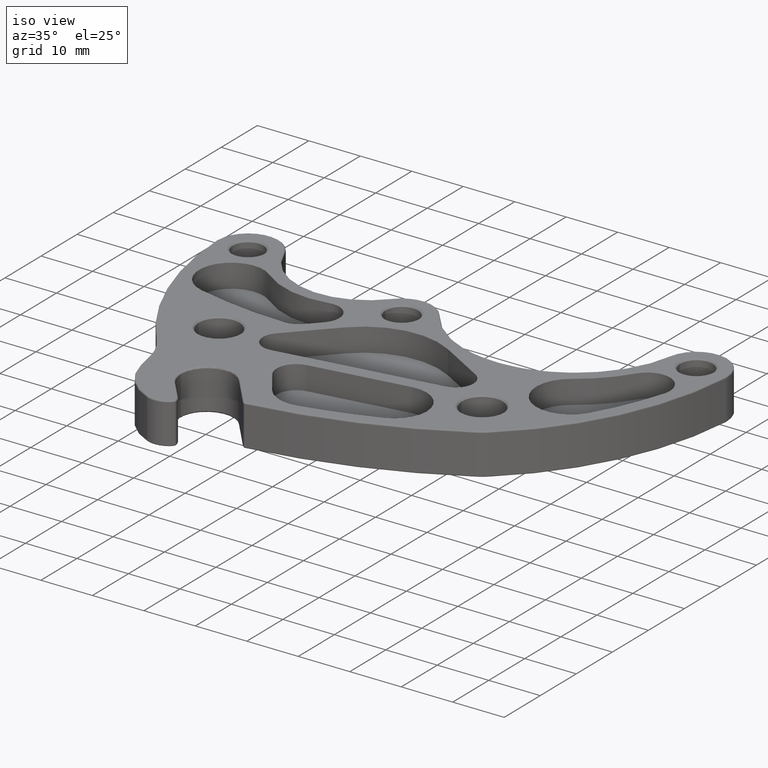
[diagram: clean part render]
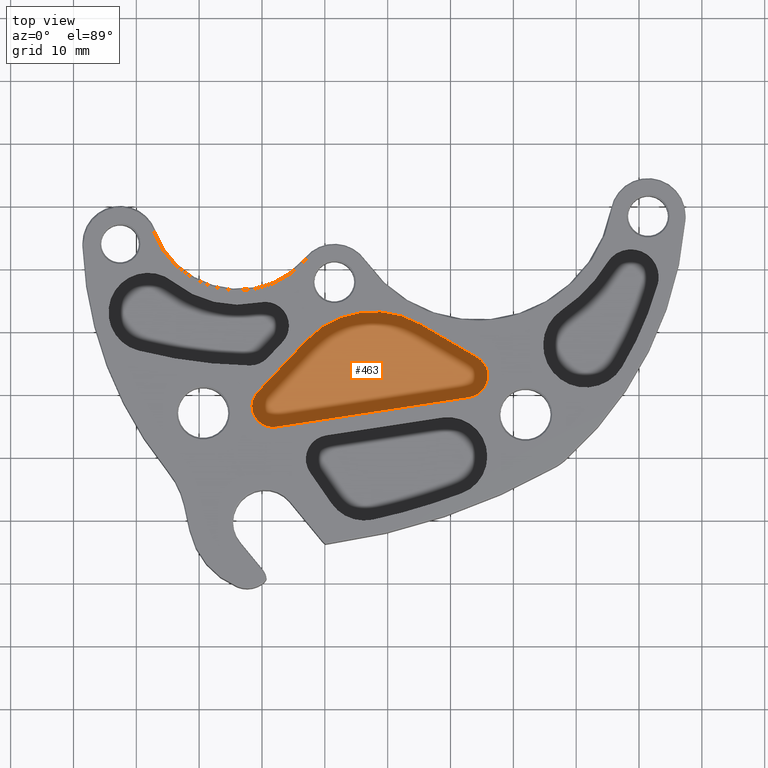
[diagram: tour spotlight — one face highlighted and labeled with its STEP entity id]
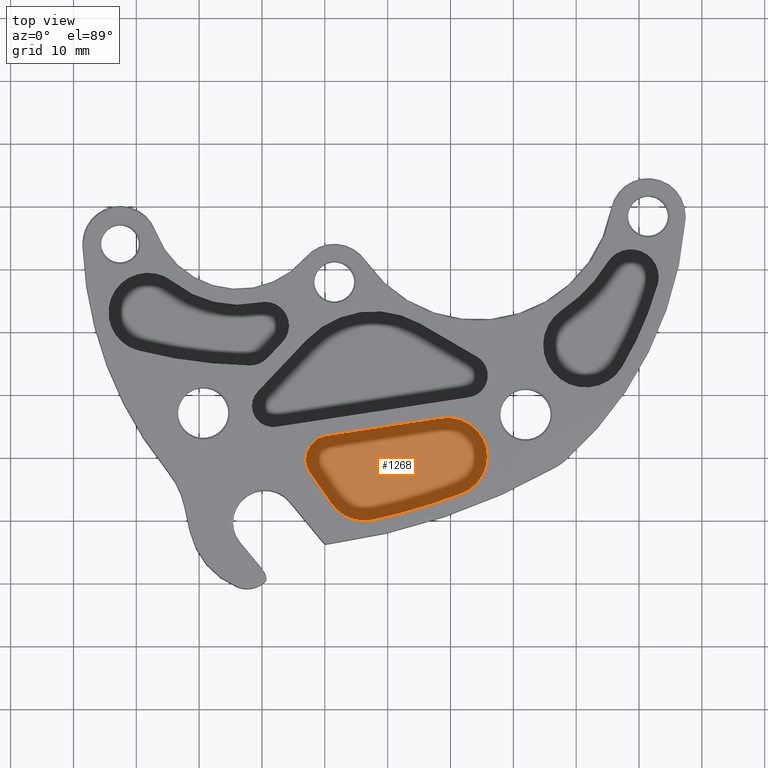
[diagram: tour spotlight — one face highlighted and labeled with its STEP entity id]
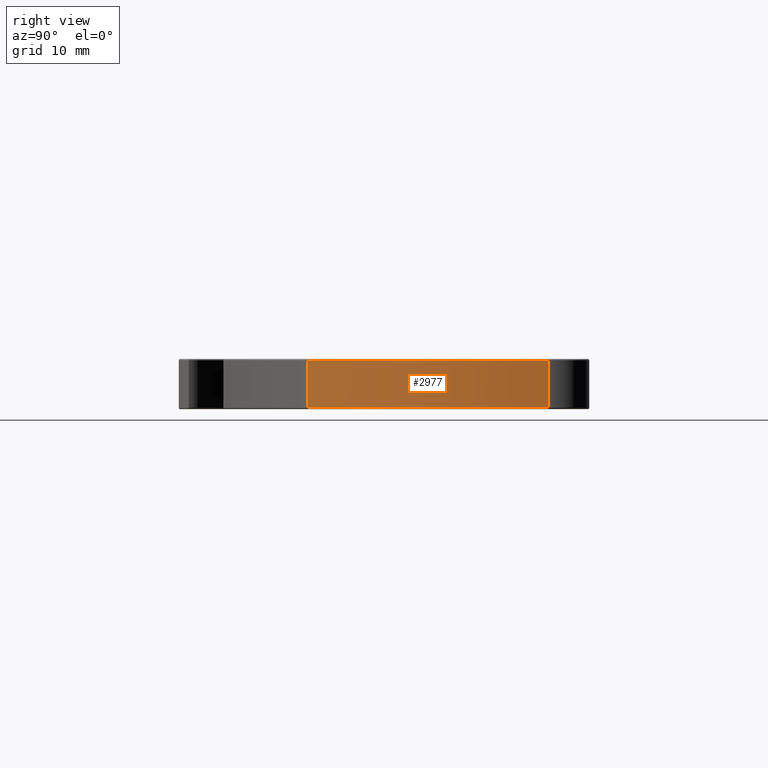
[diagram: tour spotlight — one face highlighted and labeled with its STEP entity id]
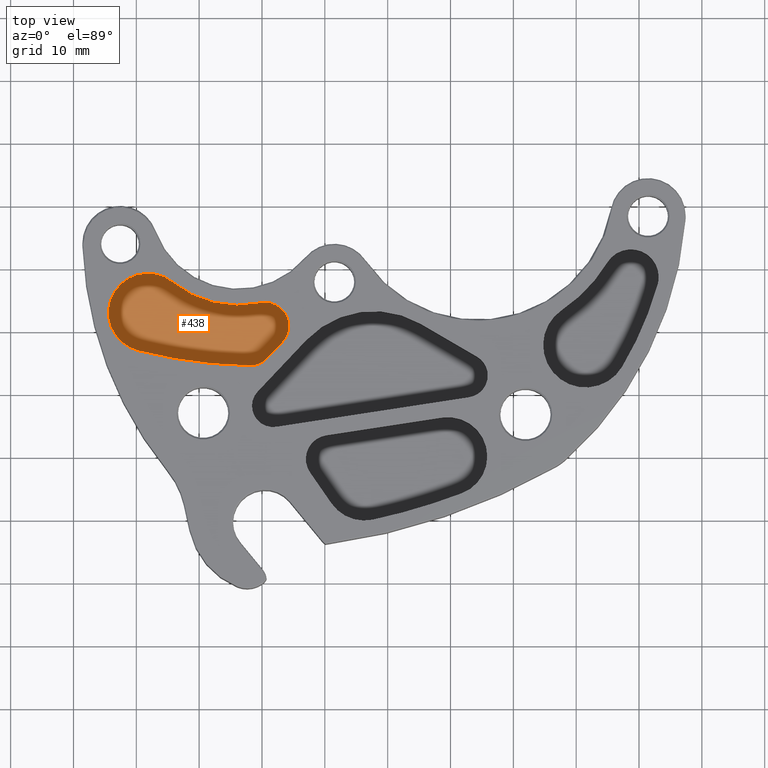
[diagram: tour spotlight — one face highlighted and labeled with its STEP entity id]
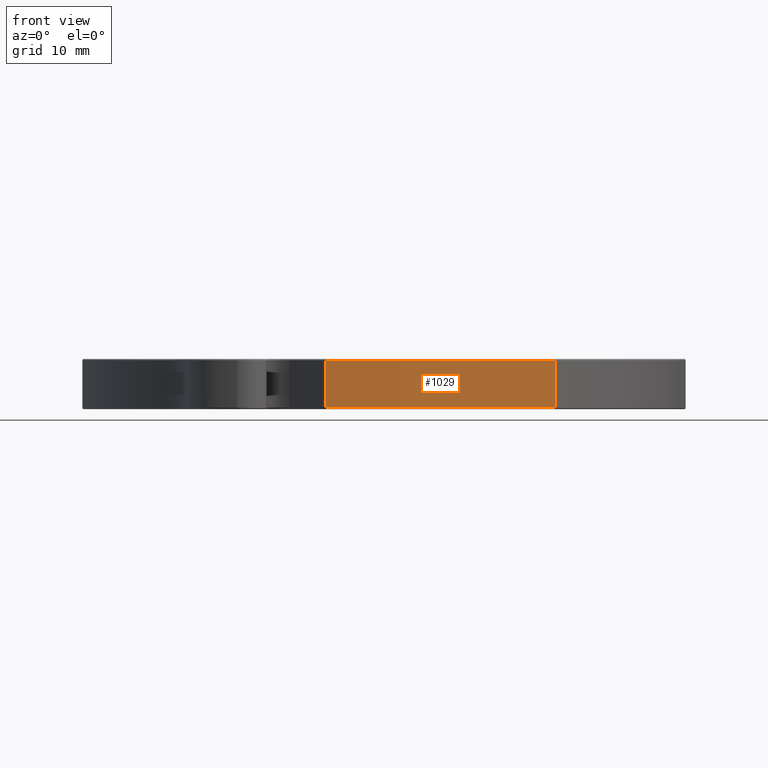
[diagram: tour spotlight — one face highlighted and labeled with its STEP entity id]
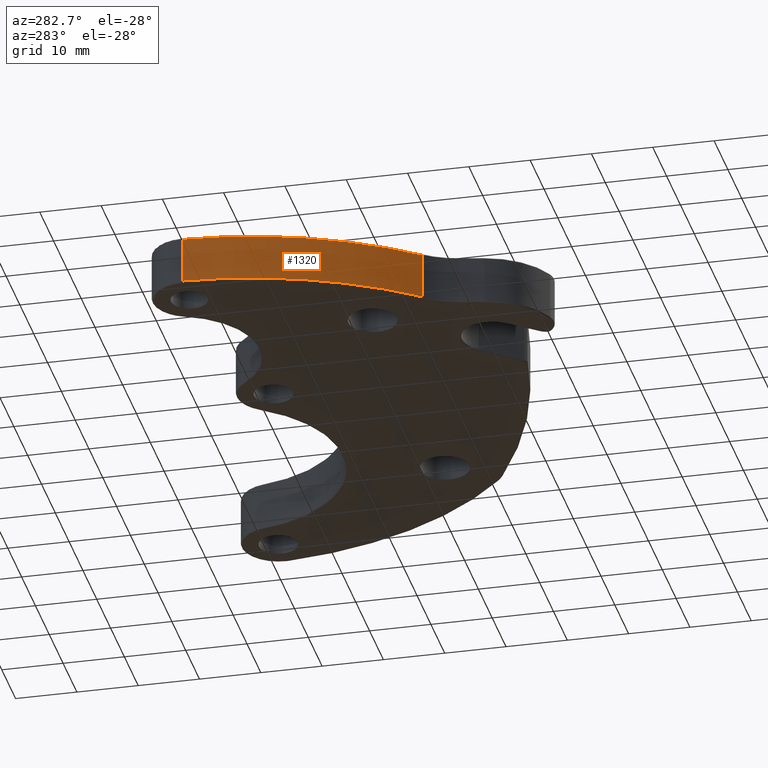
[diagram: tour spotlight — one face highlighted and labeled with its STEP entity id]
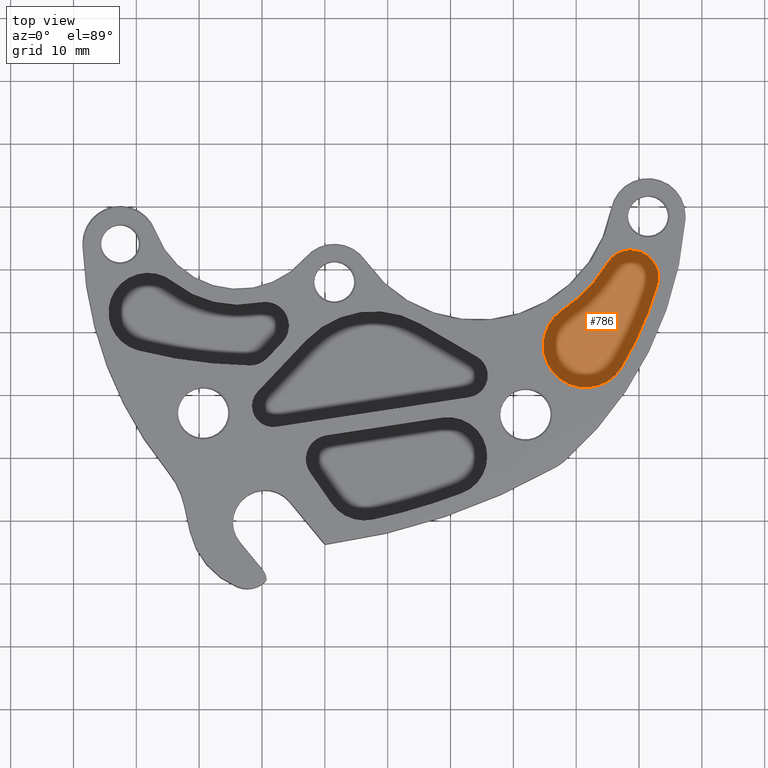
[diagram: tour spotlight — one face highlighted and labeled with its STEP entity id]
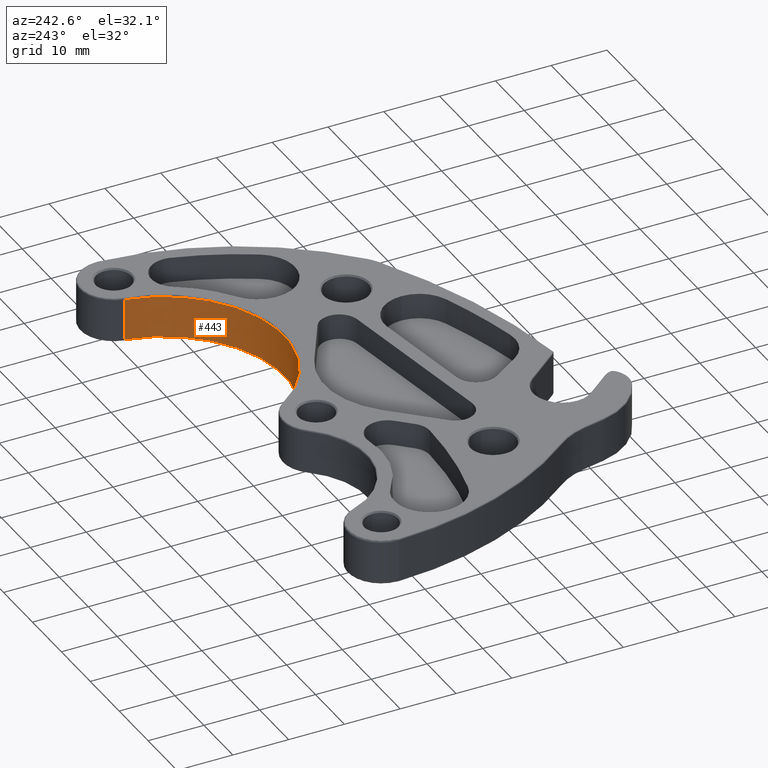
[diagram: tour spotlight — one face highlighted and labeled with its STEP entity id]
A machine part: a face-by-face anatomy tour. The part has 121 B-rep faces; the first image is the clean iso view, then the 8 largest visible faces are spotlighted one at a time (largest first), each with its STEP entity span.

Face 1 — top view, entity #463. In plain terms, the highlighted planar face has unit normal (0, 0, 1).
Definition (entity closure, byte-faithful):
#92 = ORIENTED_EDGE ( 'NONE', *, *, #1178, .T. ) ;
#105 = CIRCLE ( 'NONE', #2047, 0.1374311706390002885 ) ;
#166 = VERTEX_POINT ( 'NONE', #3463 ) ;
#179 = EDGE_LOOP ( 'NONE', ( #2503, #2310, #3189, #3592, #3028, #92, #596 ) ) ;
#463 = ADVANCED_FACE ( 'NONE', ( #1175 ), #1138, .T. ) ;
#488 = CIRCLE ( 'NONE', #1477, 0.1374311706390002885 ) ;
#549 = CARTESIAN_POINT ( 'NONE',  ( 1.880499085471999177, -5.965355483624994903, 0.1349999999999997868 ) ) ;
#596 = ORIENTED_EDGE ( 'NONE', *, *, #2193, .T. ) ;
#598 = CIRCLE ( 'NONE', #3480, 0.1322008831554022379 ) ;
#636 = EDGE_CURVE ( 'NONE', #2556, #974, #1303, .T. ) ;
#640 = VERTEX_POINT ( 'NONE', #3503 ) ;
#706 = AXIS2_PLACEMENT_3D ( 'NONE', #1419, #1346, #1646 ) ;
#731 = EDGE_CURVE ( 'NONE', #1625, #795, #2758, .T. ) ;
#795 = VERTEX_POINT ( 'NONE', #1607 ) ;
#836 = EDGE_CURVE ( 'NONE', #3085, #2556, #598, .T. ) ;
#926 = CARTESIAN_POINT ( 'NONE',  ( 2.457795016328999882, -5.787563761074995483, 0.1349999999999997868 ) ) ;
#974 = VERTEX_POINT ( 'NONE', #1140 ) ;
#1074 = DIRECTION ( 'NONE',  ( 1.000000000000000000, 0.0000000000000000000, 0.0000000000000000000 ) ) ;
#1138 = PLANE ( 'NONE',  #706 ) ;
#1140 = CARTESIAN_POINT ( 'NONE',  ( 2.478599164914152997, -5.923411153633166393, 0.1349999999999997313 ) ) ;
#1175 = FACE_OUTER_BOUND ( 'NONE', #179, .T. ) ;
#1178 = EDGE_CURVE ( 'NONE', #795, #640, #2522, .T. ) ;
#1212 = DIRECTION ( 'NONE',  ( 1.000000000000000000, 0.0000000000000000000, 0.0000000000000000000 ) ) ;
#1303 = LINE ( 'NONE', #1946, #2104 ) ;
#1323 = AXIS2_PLACEMENT_3D ( 'NONE', #549, #1711, #3373 ) ;
#1346 = DIRECTION ( 'NONE',  ( 7.534237942442868409E-31, 3.389636702121541407E-30, 1.000000000000000000 ) ) ;
#1348 = CARTESIAN_POINT ( 'NONE',  ( 1.250367637380000341, -5.977764711144997634, 0.1349999999999997591 ) ) ;
#1419 = CARTESIAN_POINT ( 'NONE',  ( 1.250367637380000341, -5.977764711144997634, 0.1349999999999997591 ) ) ;
#1477 = AXIS2_PLACEMENT_3D ( 'NONE', #926, #2839, #1212 ) ;
#1607 = CARTESIAN_POINT ( 'NONE',  ( 2.173330800213257419, -5.462765187952187240, 0.1349999999999998701 ) ) ;
#1625 = VERTEX_POINT ( 'NONE', #3056 ) ;
#1645 = CARTESIAN_POINT ( 'NONE',  ( 2.457795016328999882, -5.787563761074995483, 0.1349999999999997868 ) ) ;
#1646 = DIRECTION ( 'NONE',  ( 1.000000000000000000, 1.110223024625157280E-16, -7.534237942442871912E-31 ) ) ;
#1711 = DIRECTION ( 'NONE',  ( -9.013352139732279557E-31, 3.389636702121541407E-30, 1.000000000000000000 ) ) ;
#1851 = CARTESIAN_POINT ( 'NONE',  ( 1.154280082573003519, -5.886966829460996031, 0.1349999999999997313 ) ) ;
#1926 = DIRECTION ( 'NONE',  ( 1.000000000000000000, 0.0000000000000000000, 0.0000000000000000000 ) ) ;
#1946 = CARTESIAN_POINT ( 'NONE',  ( 1.270380031973000756, -6.108442090862000740, 0.1349999999999997868 ) ) ;
#1971 = LINE ( 'NONE', #3108, #3251 ) ;
#2047 = AXIS2_PLACEMENT_3D ( 'NONE', #1645, #3566, #1926 ) ;
#2104 = VECTOR ( 'NONE', #3054, 39.37007874015748143 ) ;
#2193 = EDGE_CURVE ( 'NONE', #640, #3085, #1971, .T. ) ;
#2310 = ORIENTED_EDGE ( 'NONE', *, *, #636, .T. ) ;
#2363 = DIRECTION ( 'NONE',  ( -0.6868175122344041261, -0.7268299009315342118, -2.483679256281781108E-30 ) ) ;
#2503 = ORIENTED_EDGE ( 'NONE', *, *, #836, .T. ) ;
#2522 = CIRCLE ( 'NONE', #1323, 0.5816763863720003647 ) ;
#2556 = VERTEX_POINT ( 'NONE', #2867 ) ;
#2758 = LINE ( 'NONE', #2787, #3150 ) ;
#2787 = CARTESIAN_POINT ( 'NONE',  ( 2.526981605814136334, -5.668818055895314956, 0.1349999999999997591 ) ) ;
#2839 = DIRECTION ( 'NONE',  ( -9.013352139732279557E-31, 3.389636702121541407E-30, 1.000000000000000000 ) ) ;
#2849 = EDGE_CURVE ( 'NONE', #166, #1625, #105, .T. ) ;
#2867 = CARTESIAN_POINT ( 'NONE',  ( 1.270380031973000756, -6.108442090862000740, 0.1349999999999997868 ) ) ;
#3028 = ORIENTED_EDGE ( 'NONE', *, *, #731, .T. ) ;
#3054 = DIRECTION ( 'NONE',  ( 0.9884758452287893959, 0.1513786755102258241, -5.700752635386220315E-32 ) ) ;
#3056 = CARTESIAN_POINT ( 'NONE',  ( 2.526981605814136334, -5.668818055895314956, 0.1349999999999997591 ) ) ;
#3085 = VERTEX_POINT ( 'NONE', #1851 ) ;
#3108 = CARTESIAN_POINT ( 'NONE',  ( 1.457719295190799791, -5.565849955011723083, 0.1349999999999997313 ) ) ;
#3150 = VECTOR ( 'NONE', #3570, 39.37007874015748854 ) ;
#3189 = ORIENTED_EDGE ( 'NONE', *, *, #3320, .T. ) ;
#3251 = VECTOR ( 'NONE', #2363, 39.37007874015748854 ) ;
#3261 = DIRECTION ( 'NONE',  ( -9.013352139732279557E-31, 3.389636702121541407E-30, 1.000000000000000000 ) ) ;
#3320 = EDGE_CURVE ( 'NONE', #974, #166, #488, .T. ) ;
#3373 = DIRECTION ( 'NONE',  ( 1.000000000000000000, 0.0000000000000000000, 0.0000000000000000000 ) ) ;
#3463 = CARTESIAN_POINT ( 'NONE',  ( 2.595226186968000448, -5.787563761074995483, 0.1349999999999997868 ) ) ;
#3480 = AXIS2_PLACEMENT_3D ( 'NONE', #1348, #3261, #1074 ) ;
#3503 = CARTESIAN_POINT ( 'NONE',  ( 1.457719295190799791, -5.565849955011723083, 0.1349999999999997313 ) ) ;
#3566 = DIRECTION ( 'NONE',  ( -9.013352139732279557E-31, 3.389636702121541407E-30, 1.000000000000000000 ) ) ;
#3570 = DIRECTION ( 'NONE',  ( -0.8640376460999206198, 0.5034272004193933725, 2.643916627654797729E-30 ) ) ;
#3592 = ORIENTED_EDGE ( 'NONE', *, *, #2849, .T. ) ;

Face 2 — top view, entity #1268. In plain terms, the highlighted planar face has unit normal (0, 0, 1).
Definition (entity closure, byte-faithful):
#75 = VECTOR ( 'NONE', #1152, 39.37007874015748854 ) ;
#86 = EDGE_CURVE ( 'NONE', #2368, #1735, #1958, .T. ) ;
#101 = EDGE_CURVE ( 'NONE', #1924, #2368, #484, .T. ) ;
#119 = DIRECTION ( 'NONE',  ( 1.000000000000000000, 0.0000000000000000000, 0.0000000000000000000 ) ) ;
#129 = VERTEX_POINT ( 'NONE', #2663 ) ;
#137 = FACE_OUTER_BOUND ( 'NONE', #1278, .T. ) ;
#140 = CARTESIAN_POINT ( 'NONE',  ( 1.605793819709998571, -6.309990268317001494, 0.1349999999999997868 ) ) ;
#290 = EDGE_CURVE ( 'NONE', #129, #334, #2979, .T. ) ;
#334 = VERTEX_POINT ( 'NONE', #2866 ) ;
#380 = DIRECTION ( 'NONE',  ( 1.000000000000000000, 0.0000000000000000000, 0.0000000000000000000 ) ) ;
#398 = DIRECTION ( 'NONE',  ( -9.013352139732279557E-31, 3.389636702121541407E-30, 1.000000000000000000 ) ) ;
#415 = AXIS2_PLACEMENT_3D ( 'NONE', #431, #616, #1679 ) ;
#431 = CARTESIAN_POINT ( 'NONE',  ( 2.345576810415005653, -6.294339333500996503, 0.1349999999999997591 ) ) ;
#465 = ORIENTED_EDGE ( 'NONE', *, *, #101, .T. ) ;
#484 = CIRCLE ( 'NONE', #2939, 0.2465167982770000155 ) ;
#504 = AXIS2_PLACEMENT_3D ( 'NONE', #904, #3331, #1794 ) ;
#517 = EDGE_CURVE ( 'NONE', #1735, #3154, #821, .T. ) ;
#582 = ORIENTED_EDGE ( 'NONE', *, *, #517, .T. ) ;
#616 = DIRECTION ( 'NONE',  ( -9.013352139732279557E-31, 3.389636702121541407E-30, 1.000000000000000000 ) ) ;
#821 = LINE ( 'NONE', #3589, #75 ) ;
#873 = PLANE ( 'NONE',  #3350 ) ;
#878 = AXIS2_PLACEMENT_3D ( 'NONE', #1722, #3597, #380 ) ;
#904 = CARTESIAN_POINT ( 'NONE',  ( 1.053930800482054897, -2.897121107431170905, 0.1349999999999997313 ) ) ;
#908 = DIRECTION ( 'NONE',  ( 1.000000000000000000, 0.0000000000000000000, 0.0000000000000000000 ) ) ;
#1050 = ORIENTED_EDGE ( 'NONE', *, *, #3520, .T. ) ;
#1152 = DIRECTION ( 'NONE',  ( -0.9884758452287999431, -0.1513786755101575454, 2.064596900383118148E-31 ) ) ;
#1268 = ADVANCED_FACE ( 'NONE', ( #137 ), #873, .T. ) ;
#1278 = EDGE_LOOP ( 'NONE', ( #2736, #1050, #2584, #2531, #465, #1369, #582 ) ) ;
#1290 = EDGE_CURVE ( 'NONE', #334, #1924, #1443, .T. ) ;
#1301 = EDGE_CURVE ( 'NONE', #3154, #2076, #1522, .T. ) ;
#1369 = ORIENTED_EDGE ( 'NONE', *, *, #86, .T. ) ;
#1443 = CIRCLE ( 'NONE', #504, 3.880996278273691757 ) ;
#1506 = CARTESIAN_POINT ( 'NONE',  ( 2.433185624999982810, -6.524763350130722728, 0.1349999999999997868 ) ) ;
#1522 = CIRCLE ( 'NONE', #878, 0.1499999999999994948 ) ;
#1679 = DIRECTION ( 'NONE',  ( 1.000000000000000000, 0.0000000000000000000, 0.0000000000000000000 ) ) ;
#1722 = CARTESIAN_POINT ( 'NONE',  ( 1.605793819709998571, -6.309990268317001494, 0.1349999999999997868 ) ) ;
#1735 = VERTEX_POINT ( 'NONE', #3093 ) ;
#1794 = DIRECTION ( 'NONE',  ( 1.000000000000000000, 1.407807582273393970E-16, 0.0000000000000000000 ) ) ;
#1805 = DIRECTION ( 'NONE',  ( 1.000000000000000000, 1.110223024625157280E-16, -7.534237942442871912E-31 ) ) ;
#1816 = CARTESIAN_POINT ( 'NONE',  ( 2.345576810415005653, -6.294339333500996503, 0.1349999999999997591 ) ) ;
#1886 = CARTESIAN_POINT ( 'NONE',  ( 1.583087018383466216, -6.161718891532684594, 0.1349999999999997868 ) ) ;
#1902 = CARTESIAN_POINT ( 'NONE',  ( 1.482527470975900208, -6.395461943565369900, 0.1349999999999997868 ) ) ;
#1924 = VERTEX_POINT ( 'NONE', #1506 ) ;
#1958 = CIRCLE ( 'NONE', #415, 0.2465167982770000155 ) ;
#2076 = VERTEX_POINT ( 'NONE', #2959 ) ;
#2338 = CARTESIAN_POINT ( 'NONE',  ( 1.821788140761001262, -6.445998264761000129, 0.1349999999999997036 ) ) ;
#2368 = VERTEX_POINT ( 'NONE', #2518 ) ;
#2373 = AXIS2_PLACEMENT_3D ( 'NONE', #2338, #398, #119 ) ;
#2518 = CARTESIAN_POINT ( 'NONE',  ( 2.592093608692005891, -6.294339333500996503, 0.1349999999999997591 ) ) ;
#2531 = ORIENTED_EDGE ( 'NONE', *, *, #1290, .T. ) ;
#2584 = ORIENTED_EDGE ( 'NONE', *, *, #290, .T. ) ;
#2620 = LINE ( 'NONE', #1902, #3349 ) ;
#2663 = CARTESIAN_POINT ( 'NONE',  ( 1.616344226204161849, -6.588451056841615916, 0.1349999999999997313 ) ) ;
#2736 = ORIENTED_EDGE ( 'NONE', *, *, #1301, .T. ) ;
#2866 = CARTESIAN_POINT ( 'NONE',  ( 1.874656367649123023, -6.690344229707641865, 0.1349999999999997868 ) ) ;
#2939 = AXIS2_PLACEMENT_3D ( 'NONE', #1816, #3380, #908 ) ;
#2959 = CARTESIAN_POINT ( 'NONE',  ( 1.482527470975900208, -6.395461943565369900, 0.1349999999999997868 ) ) ;
#2979 = CIRCLE ( 'NONE', #2373, 0.2500000000000006106 ) ;
#3093 = CARTESIAN_POINT ( 'NONE',  ( 2.308259424000808302, -6.050663432961044919, 0.1349999999999998701 ) ) ;
#3154 = VERTEX_POINT ( 'NONE', #1886 ) ;
#3331 = DIRECTION ( 'NONE',  ( -9.013352139732279557E-31, 3.389636702121541407E-30, 1.000000000000000000 ) ) ;
#3349 = VECTOR ( 'NONE', #3543, 39.37007874015748854 ) ;
#3350 = AXIS2_PLACEMENT_3D ( 'NONE', #140, #3446, #1805 ) ;
#3380 = DIRECTION ( 'NONE',  ( -9.013352139732279557E-31, 3.389636702121541407E-30, 1.000000000000000000 ) ) ;
#3446 = DIRECTION ( 'NONE',  ( 7.534237942442868409E-31, 3.389636702121541407E-30, 1.000000000000000000 ) ) ;
#3520 = EDGE_CURVE ( 'NONE', #2076, #129, #2620, .T. ) ;
#3543 = DIRECTION ( 'NONE',  ( 0.5698111683228163082, -0.8217756582271020793, -3.198584451638322706E-30 ) ) ;
#3589 = CARTESIAN_POINT ( 'NONE',  ( 2.308259424000808746, -6.050663432961049359, 0.1349999999999998701 ) ) ;
#3597 = DIRECTION ( 'NONE',  ( -9.013352139732279557E-31, 3.389636702121541407E-30, 1.000000000000000000 ) ) ;

Face 3 — right view, entity #2977. In plain terms, the highlighted cylindrical surface (partial cylindrical patch) has radius 57.15 mm, axis along (0, -0, -1).
Definition (entity closure, byte-faithful):
#185 = DIRECTION ( 'NONE',  ( 1.000000000000000000, 0.0000000000000000000, 0.0000000000000000000 ) ) ;
#188 = VECTOR ( 'NONE', #399, 39.37007874015748143 ) ;
#194 = ORIENTED_EDGE ( 'NONE', *, *, #3124, .T. ) ;
#399 = DIRECTION ( 'NONE',  ( 9.013352139732279557E-31, -3.389636702121541407E-30, -1.000000000000000000 ) ) ;
#424 = AXIS2_PLACEMENT_3D ( 'NONE', #1331, #3242, #1599 ) ;
#586 = AXIS2_PLACEMENT_3D ( 'NONE', #3490, #1854, #185 ) ;
#650 = ORIENTED_EDGE ( 'NONE', *, *, #2592, .F. ) ;
#657 = DIRECTION ( 'NONE',  ( 9.013352139732279557E-31, -3.389636702121541407E-30, -1.000000000000000000 ) ) ;
#658 = CARTESIAN_POINT ( 'NONE',  ( 3.834663069735839258, -4.804353314426143662, 0.3049999999999994937 ) ) ;
#697 = DIRECTION ( 'NONE',  ( 9.013352139732279557E-31, -3.389636702121541407E-30, -1.000000000000000000 ) ) ;
#711 = FACE_OUTER_BOUND ( 'NONE', #1372, .T. ) ;
#991 = VERTEX_POINT ( 'NONE', #1440 ) ;
#1013 = CARTESIAN_POINT ( 'NONE',  ( 3.083765516642494653, -6.313064160492393384, 0.009999999999999993269 ) ) ;
#1099 = CIRCLE ( 'NONE', #424, 2.249999999999998668 ) ;
#1234 = CARTESIAN_POINT ( 'NONE',  ( 3.834663069735839258, -4.804353314426143662, 0.3149999999999997247 ) ) ;
#1331 = CARTESIAN_POINT ( 'NONE',  ( 1.591496346171999976, -4.629130455484000706, 0.009999999999999995004 ) ) ;
#1372 = EDGE_LOOP ( 'NONE', ( #650, #3444, #3118, #194 ) ) ;
#1440 = CARTESIAN_POINT ( 'NONE',  ( 3.083765516642495985, -6.313064160492393384, 0.3049999999999994937 ) ) ;
#1495 = VECTOR ( 'NONE', #697, 39.37007874015748143 ) ;
#1566 = VERTEX_POINT ( 'NONE', #658 ) ;
#1599 = DIRECTION ( 'NONE',  ( 1.000000000000000000, 0.0000000000000000000, 0.0000000000000000000 ) ) ;
#1803 = CARTESIAN_POINT ( 'NONE',  ( 3.083765516642495985, -6.313064160492393384, 0.3149999999999994471 ) ) ;
#1854 = DIRECTION ( 'NONE',  ( 9.013352139732279557E-31, -3.389636702121541407E-30, -1.000000000000000000 ) ) ;
#2285 = VERTEX_POINT ( 'NONE', #2747 ) ;
#2397 = LINE ( 'NONE', #1234, #188 ) ;
#2537 = AXIS2_PLACEMENT_3D ( 'NONE', #3185, #657, #2858 ) ;
#2592 = EDGE_CURVE ( 'NONE', #1566, #2285, #2397, .T. ) ;
#2649 = EDGE_CURVE ( 'NONE', #991, #3035, #2954, .T. ) ;
#2682 = EDGE_CURVE ( 'NONE', #1566, #991, #3247, .T. ) ;
#2747 = CARTESIAN_POINT ( 'NONE',  ( 3.834663069735839258, -4.804353314426143662, 0.009999999999999995004 ) ) ;
#2858 = DIRECTION ( 'NONE',  ( -1.000000000000000000, 0.0000000000000000000, 0.0000000000000000000 ) ) ;
#2954 = LINE ( 'NONE', #1803, #1495 ) ;
#2977 = ADVANCED_FACE ( 'NONE', ( #711 ), #3470, .T. ) ;
#3035 = VERTEX_POINT ( 'NONE', #1013 ) ;
#3118 = ORIENTED_EDGE ( 'NONE', *, *, #2649, .T. ) ;
#3124 = EDGE_CURVE ( 'NONE', #3035, #2285, #1099, .T. ) ;
#3185 = CARTESIAN_POINT ( 'NONE',  ( 1.591496346171999976, -4.629130455484000706, 0.3149999999999991696 ) ) ;
#3242 = DIRECTION ( 'NONE',  ( -9.013352139732279557E-31, 3.389636702121541407E-30, 1.000000000000000000 ) ) ;
#3247 = CIRCLE ( 'NONE', #586, 2.249999999999998668 ) ;
#3444 = ORIENTED_EDGE ( 'NONE', *, *, #2682, .T. ) ;
#3470 = CYLINDRICAL_SURFACE ( 'NONE', #2537, 2.249999999999998224 ) ;
#3490 = CARTESIAN_POINT ( 'NONE',  ( 1.591496346171999976, -4.629130455484000706, 0.3049999999999994937 ) ) ;

Face 4 — top view, entity #438. In plain terms, the highlighted planar face has unit normal (0, 0, 1).
Definition (entity closure, byte-faithful):
#52 = EDGE_CURVE ( 'NONE', #3105, #295, #1314, .T. ) ;
#154 = CARTESIAN_POINT ( 'NONE',  ( 1.151139884353005183, -2.724650972609027999, 0.1349999999999997868 ) ) ;
#157 = ORIENTED_EDGE ( 'NONE', *, *, #871, .T. ) ;
#168 = EDGE_CURVE ( 'NONE', #1296, #687, #2605, .T. ) ;
#173 = DIRECTION ( 'NONE',  ( -9.013352139732279557E-31, 3.389636702121541407E-30, 1.000000000000000000 ) ) ;
#176 = CIRCLE ( 'NONE', #247, 0.2474917749629994279 ) ;
#212 = PLANE ( 'NONE',  #2672 ) ;
#240 = CARTESIAN_POINT ( 'NONE',  ( 1.103397267705831464, -5.724271055645147044, 0.1349999999999997313 ) ) ;
#247 = AXIS2_PLACEMENT_3D ( 'NONE', #2144, #1330, #1056 ) ;
#278 = CARTESIAN_POINT ( 'NONE',  ( 1.199573256806000909, -5.475037272772000918, 0.1349999999999997313 ) ) ;
#295 = VERTEX_POINT ( 'NONE', #474 ) ;
#421 = DIRECTION ( 'NONE',  ( -9.013352139732279557E-31, 3.389636702121541407E-30, 1.000000000000000000 ) ) ;
#438 = ADVANCED_FACE ( 'NONE', ( #600 ), #212, .T. ) ;
#454 = CIRCLE ( 'NONE', #1172, 2.999999999999710010 ) ;
#474 = CARTESIAN_POINT ( 'NONE',  ( 0.6222914329167578140, -5.198282679521770255, 0.1349999999999997591 ) ) ;
#531 = CARTESIAN_POINT ( 'NONE',  ( 1.214808883677789941, -5.677312678328100048, 0.1349999999999997036 ) ) ;
#540 = DIRECTION ( 'NONE',  ( 1.000000000000000000, 1.110223024625157280E-16, -7.534237942442871912E-31 ) ) ;
#561 = DIRECTION ( 'NONE',  ( -9.013352139732279557E-31, 3.389636702121541407E-30, 1.000000000000000000 ) ) ;
#600 = FACE_OUTER_BOUND ( 'NONE', #1907, .T. ) ;
#687 = VERTEX_POINT ( 'NONE', #1702 ) ;
#691 = LINE ( 'NONE', #1049, #3531 ) ;
#803 = EDGE_CURVE ( 'NONE', #3540, #1296, #691, .T. ) ;
#871 = EDGE_CURVE ( 'NONE', #3517, #3540, #2791, .T. ) ;
#930 = VERTEX_POINT ( 'NONE', #2192 ) ;
#1049 = CARTESIAN_POINT ( 'NONE',  ( 1.214808883677789941, -5.677312678328100048, 0.1349999999999997036 ) ) ;
#1056 = DIRECTION ( 'NONE',  ( 1.000000000000000000, 0.0000000000000000000, 0.0000000000000000000 ) ) ;
#1070 = DIRECTION ( 'NONE',  ( 7.534237942442868409E-31, 3.389636702121541407E-30, 1.000000000000000000 ) ) ;
#1172 = AXIS2_PLACEMENT_3D ( 'NONE', #154, #3485, #3461 ) ;
#1266 = CARTESIAN_POINT ( 'NONE',  ( 1.031141242855998286, -4.692969080939005444, 0.1349999999999997868 ) ) ;
#1296 = VERTEX_POINT ( 'NONE', #2589 ) ;
#1314 = CIRCLE ( 'NONE', #2918, 0.6500000000000154543 ) ;
#1330 = DIRECTION ( 'NONE',  ( -9.013352139732279557E-31, 3.389636702121541407E-30, 1.000000000000000000 ) ) ;
#1448 = DIRECTION ( 'NONE',  ( 1.000000000000000000, 0.0000000000000000000, 0.0000000000000000000 ) ) ;
#1478 = EDGE_CURVE ( 'NONE', #295, #930, #176, .T. ) ;
#1555 = CARTESIAN_POINT ( 'NONE',  ( 1.105784398537997593, -5.574290051492992504, 0.1349999999999997868 ) ) ;
#1600 = ORIENTED_EDGE ( 'NONE', *, *, #168, .T. ) ;
#1651 = CARTESIAN_POINT ( 'NONE',  ( 0.4666191788319989930, -5.390684155561998203, 0.1349999999999997868 ) ) ;
#1668 = CIRCLE ( 'NONE', #1916, 0.1499999999999997724 ) ;
#1702 = CARTESIAN_POINT ( 'NONE',  ( 1.349573256806001043, -5.475037272772000918, 0.1349999999999997313 ) ) ;
#1760 = AXIS2_PLACEMENT_3D ( 'NONE', #1555, #173, #1839 ) ;
#1839 = DIRECTION ( 'NONE',  ( 1.000000000000000000, 0.0000000000000000000, 0.0000000000000000000 ) ) ;
#1907 = EDGE_LOOP ( 'NONE', ( #3502, #1927, #157, #2092, #1600, #2138, #3146 ) ) ;
#1916 = AXIS2_PLACEMENT_3D ( 'NONE', #278, #561, #2501 ) ;
#1927 = ORIENTED_EDGE ( 'NONE', *, *, #1970, .T. ) ;
#1970 = EDGE_CURVE ( 'NONE', #930, #3517, #454, .T. ) ;
#2075 = DIRECTION ( 'NONE',  ( 1.000000000000000000, 0.0000000000000000000, 0.0000000000000000000 ) ) ;
#2092 = ORIENTED_EDGE ( 'NONE', *, *, #803, .T. ) ;
#2138 = ORIENTED_EDGE ( 'NONE', *, *, #3194, .T. ) ;
#2144 = CARTESIAN_POINT ( 'NONE',  ( 0.4666191788319989930, -5.390684155561998203, 0.1349999999999997868 ) ) ;
#2192 = CARTESIAN_POINT ( 'NONE',  ( 0.4050705001150723406, -5.630400527182013448, 0.1349999999999997868 ) ) ;
#2364 = CARTESIAN_POINT ( 'NONE',  ( 1.199573256806000909, -5.475037272772000918, 0.1349999999999997313 ) ) ;
#2501 = DIRECTION ( 'NONE',  ( 1.000000000000000000, 0.0000000000000000000, 0.0000000000000000000 ) ) ;
#2589 = CARTESIAN_POINT ( 'NONE',  ( 1.308597741945789261, -5.578059899607098693, 0.1349999999999997313 ) ) ;
#2605 = CIRCLE ( 'NONE', #2626, 0.1499999999999997724 ) ;
#2626 = AXIS2_PLACEMENT_3D ( 'NONE', #2364, #421, #2075 ) ;
#2672 = AXIS2_PLACEMENT_3D ( 'NONE', #1651, #1070, #540 ) ;
#2791 = CIRCLE ( 'NONE', #1760, 0.1500000000003232081 ) ;
#2840 = DIRECTION ( 'NONE',  ( 9.013352139732279557E-31, -3.389636702121541407E-30, -1.000000000000000000 ) ) ;
#2918 = AXIS2_PLACEMENT_3D ( 'NONE', #1266, #2840, #1448 ) ;
#2950 = CARTESIAN_POINT ( 'NONE',  ( 1.167992254190264312, -5.328399486803256480, 0.1349999999999997868 ) ) ;
#3105 = VERTEX_POINT ( 'NONE', #2950 ) ;
#3146 = ORIENTED_EDGE ( 'NONE', *, *, #52, .T. ) ;
#3194 = EDGE_CURVE ( 'NONE', #687, #3105, #1668, .T. ) ;
#3461 = DIRECTION ( 'NONE',  ( 1.000000000000000000, 1.821231995776351494E-16, 0.0000000000000000000 ) ) ;
#3485 = DIRECTION ( 'NONE',  ( -9.013352139732279557E-31, 3.389636702121541407E-30, 1.000000000000000000 ) ) ;
#3502 = ORIENTED_EDGE ( 'NONE', *, *, #1478, .T. ) ;
#3517 = VERTEX_POINT ( 'NONE', #240 ) ;
#3530 = DIRECTION ( 'NONE',  ( 0.6868175122338905370, 0.7268299009320196014, 2.391234618951192385E-30 ) ) ;
#3531 = VECTOR ( 'NONE', #3530, 39.37007874015748854 ) ;
#3540 = VERTEX_POINT ( 'NONE', #531 ) ;

Face 5 — front view, entity #1029. In plain terms, the highlighted cylindrical surface (partial cylindrical patch) has radius 101.117 mm, axis along (0, -0, -1).
Definition (entity closure, byte-faithful):
#7 = DIRECTION ( 'NONE',  ( 9.013352139732279557E-31, -3.389636702121541407E-30, -1.000000000000000000 ) ) ;
#16 = AXIS2_PLACEMENT_3D ( 'NONE', #644, #94, #2058 ) ;
#72 = CYLINDRICAL_SURFACE ( 'NONE', #1339, 3.980996278275079625 ) ;
#94 = DIRECTION ( 'NONE',  ( 9.013352139732279557E-31, -3.389636702121541407E-30, -1.000000000000000000 ) ) ;
#117 = ORIENTED_EDGE ( 'NONE', *, *, #1253, .T. ) ;
#251 = FACE_OUTER_BOUND ( 'NONE', #3316, .T. ) ;
#261 = CIRCLE ( 'NONE', #16, 3.980996278275079625 ) ;
#353 = CARTESIAN_POINT ( 'NONE',  ( 1.582708543980141380, -6.842843533758074415, 0.009999999999999993269 ) ) ;
#364 = CARTESIAN_POINT ( 'NONE',  ( 3.019343324980156229, -6.359127025418389145, 0.3049999999999994382 ) ) ;
#407 = LINE ( 'NONE', #3282, #1799 ) ;
#644 = CARTESIAN_POINT ( 'NONE',  ( 1.053930800481982288, -2.897121107430917331, 0.3049999999999994937 ) ) ;
#649 = CARTESIAN_POINT ( 'NONE',  ( 1.053930800481982288, -2.897121107430917331, 0.3149999999999994471 ) ) ;
#699 = DIRECTION ( 'NONE',  ( -9.013352139732279557E-31, 3.389636702121541407E-30, 1.000000000000000000 ) ) ;
#837 = ORIENTED_EDGE ( 'NONE', *, *, #1870, .T. ) ;
#874 = DIRECTION ( 'NONE',  ( -1.000000000000000000, -1.372444384624213754E-16, 0.0000000000000000000 ) ) ;
#1029 = ADVANCED_FACE ( 'NONE', ( #251 ), #72, .T. ) ;
#1253 = EDGE_CURVE ( 'NONE', #1784, #1719, #1615, .T. ) ;
#1339 = AXIS2_PLACEMENT_3D ( 'NONE', #649, #7, #874 ) ;
#1395 = CARTESIAN_POINT ( 'NONE',  ( 1.582708543980120730, -6.842843533758076191, 0.3149999999999997247 ) ) ;
#1591 = VERTEX_POINT ( 'NONE', #1785 ) ;
#1615 = CIRCLE ( 'NONE', #2784, 3.980996278275079625 ) ;
#1626 = VECTOR ( 'NONE', #1671, 39.37007874015748143 ) ;
#1671 = DIRECTION ( 'NONE',  ( 9.013352139732279557E-31, -3.389636702121541407E-30, -1.000000000000000000 ) ) ;
#1719 = VERTEX_POINT ( 'NONE', #3596 ) ;
#1784 = VERTEX_POINT ( 'NONE', #353 ) ;
#1785 = CARTESIAN_POINT ( 'NONE',  ( 1.582708543980120730, -6.842843533758076191, 0.3049999999999994937 ) ) ;
#1799 = VECTOR ( 'NONE', #1925, 39.37007874015748143 ) ;
#1870 = EDGE_CURVE ( 'NONE', #2945, #1591, #261, .T. ) ;
#1925 = DIRECTION ( 'NONE',  ( 9.013352139732279557E-31, -3.389636702121541407E-30, -1.000000000000000000 ) ) ;
#2058 = DIRECTION ( 'NONE',  ( 1.000000000000000000, -3.431110961560534187E-15, 0.0000000000000000000 ) ) ;
#2208 = EDGE_CURVE ( 'NONE', #2945, #1719, #407, .T. ) ;
#2212 = ORIENTED_EDGE ( 'NONE', *, *, #2314, .T. ) ;
#2314 = EDGE_CURVE ( 'NONE', #1591, #1784, #3088, .T. ) ;
#2784 = AXIS2_PLACEMENT_3D ( 'NONE', #2886, #699, #2902 ) ;
#2886 = CARTESIAN_POINT ( 'NONE',  ( 1.053930800481980068, -2.897121107430916886, 0.01000000000000001062 ) ) ;
#2902 = DIRECTION ( 'NONE',  ( 1.000000000000000000, 1.372444384624213754E-16, 0.0000000000000000000 ) ) ;
#2944 = ORIENTED_EDGE ( 'NONE', *, *, #2208, .F. ) ;
#2945 = VERTEX_POINT ( 'NONE', #364 ) ;
#3088 = LINE ( 'NONE', #1395, #1626 ) ;
#3282 = CARTESIAN_POINT ( 'NONE',  ( 3.019343324980156229, -6.359127025418389145, 0.3149999999999994471 ) ) ;
#3316 = EDGE_LOOP ( 'NONE', ( #837, #2212, #117, #2944 ) ) ;
#3596 = CARTESIAN_POINT ( 'NONE',  ( 3.019343324980152232, -6.359127025418390922, 0.01000000000000006439 ) ) ;

Face 6 — auxiliary view, entity #1320. In plain terms, the highlighted cylindrical surface (partial cylindrical patch) has radius 60.6294 mm, axis along (0, -0, -1).
Definition (entity closure, byte-faithful):
#40 = CARTESIAN_POINT ( 'NONE',  ( 0.05580894824406718718, -4.968016846076973358, 0.3049999999999994937 ) ) ;
#250 = ORIENTED_EDGE ( 'NONE', *, *, #1016, .F. ) ;
#293 = DIRECTION ( 'NONE',  ( 9.013352139732279557E-31, -3.389636702121541407E-30, -1.000000000000000000 ) ) ;
#477 = VERTEX_POINT ( 'NONE', #40 ) ;
#618 = CARTESIAN_POINT ( 'NONE',  ( 0.5909245663508979618, -6.388203472532469007, 0.3149999999999993916 ) ) ;
#665 = DIRECTION ( 'NONE',  ( -1.000000000000000000, 0.0000000000000000000, 0.0000000000000000000 ) ) ;
#758 = EDGE_CURVE ( 'NONE', #3318, #477, #1594, .T. ) ;
#907 = CARTESIAN_POINT ( 'NONE',  ( 0.5909245663508979618, -6.388203472532469007, 0.3049999999999994382 ) ) ;
#989 = EDGE_CURVE ( 'NONE', #477, #2350, #1900, .T. ) ;
#1016 = EDGE_CURVE ( 'NONE', #3318, #2764, #1732, .T. ) ;
#1035 = DIRECTION ( 'NONE',  ( -9.013352139732279557E-31, 3.389636702121541407E-30, 1.000000000000000000 ) ) ;
#1320 = ADVANCED_FACE ( 'NONE', ( #1362 ), #3374, .T. ) ;
#1335 = DIRECTION ( 'NONE',  ( 9.013352139732279557E-31, -3.389636702121541407E-30, -1.000000000000000000 ) ) ;
#1362 = FACE_OUTER_BOUND ( 'NONE', #3375, .T. ) ;
#1376 = EDGE_CURVE ( 'NONE', #2350, #2764, #2559, .T. ) ;
#1391 = DIRECTION ( 'NONE',  ( 9.013352139732279557E-31, -3.389636702121541407E-30, -1.000000000000000000 ) ) ;
#1594 = CIRCLE ( 'NONE', #2376, 2.386983302158012243 ) ;
#1644 = VECTOR ( 'NONE', #1391, 39.37007874015748143 ) ;
#1732 = LINE ( 'NONE', #618, #1644 ) ;
#1807 = AXIS2_PLACEMENT_3D ( 'NONE', #2333, #293, #665 ) ;
#1900 = LINE ( 'NONE', #2750, #2549 ) ;
#2251 = CARTESIAN_POINT ( 'NONE',  ( 2.441173973768015149, -4.880136360254994088, 0.009999999999999995004 ) ) ;
#2333 = CARTESIAN_POINT ( 'NONE',  ( 2.441173973768016037, -4.880136360254991423, 0.3149999999999991140 ) ) ;
#2350 = VERTEX_POINT ( 'NONE', #3326 ) ;
#2362 = AXIS2_PLACEMENT_3D ( 'NONE', #2251, #1035, #3536 ) ;
#2376 = AXIS2_PLACEMENT_3D ( 'NONE', #2668, #1335, #3214 ) ;
#2549 = VECTOR ( 'NONE', #2739, 39.37007874015748143 ) ;
#2559 = CIRCLE ( 'NONE', #2362, 2.386983302158012243 ) ;
#2598 = ORIENTED_EDGE ( 'NONE', *, *, #989, .T. ) ;
#2668 = CARTESIAN_POINT ( 'NONE',  ( 2.441173973768016037, -4.880136360254991423, 0.3049999999999994937 ) ) ;
#2739 = DIRECTION ( 'NONE',  ( 9.013352139732279557E-31, -3.389636702121541407E-30, -1.000000000000000000 ) ) ;
#2750 = CARTESIAN_POINT ( 'NONE',  ( 0.05580894824406718718, -4.968016846076973358, 0.3149999999999994471 ) ) ;
#2764 = VERTEX_POINT ( 'NONE', #3525 ) ;
#3017 = ORIENTED_EDGE ( 'NONE', *, *, #1376, .T. ) ;
#3214 = DIRECTION ( 'NONE',  ( 1.000000000000000000, 7.324654153904047824E-15, 0.0000000000000000000 ) ) ;
#3243 = ORIENTED_EDGE ( 'NONE', *, *, #758, .T. ) ;
#3318 = VERTEX_POINT ( 'NONE', #907 ) ;
#3326 = CARTESIAN_POINT ( 'NONE',  ( 0.05580894824406500143, -4.968016846076973358, 0.01000000000000008174 ) ) ;
#3374 = CYLINDRICAL_SURFACE ( 'NONE', #1807, 2.386983302158012243 ) ;
#3375 = EDGE_LOOP ( 'NONE', ( #250, #3243, #2598, #3017 ) ) ;
#3525 = CARTESIAN_POINT ( 'NONE',  ( 0.5909245663508979618, -6.388203472532469007, 0.009999999999999995004 ) ) ;
#3536 = DIRECTION ( 'NONE',  ( 1.000000000000000000, 0.0000000000000000000, 0.0000000000000000000 ) ) ;

Face 7 — top view, entity #786. In plain terms, the highlighted planar face has unit normal (0, 0, 1).
Definition (entity closure, byte-faithful):
#14 = DIRECTION ( 'NONE',  ( 1.000000000000000000, 0.0000000000000000000, 0.0000000000000000000 ) ) ;
#287 = CARTESIAN_POINT ( 'NONE',  ( 3.343638451167585401, -5.079819978712378337, 0.1349999999999997868 ) ) ;
#387 = DIRECTION ( 'NONE',  ( 1.000000000000000000, 0.0000000000000000000, 0.0000000000000000000 ) ) ;
#471 = EDGE_CURVE ( 'NONE', #2670, #1963, #3186, .T. ) ;
#472 = DIRECTION ( 'NONE',  ( 9.013352139732279557E-31, -3.389636702121541407E-30, -1.000000000000000000 ) ) ;
#491 = DIRECTION ( 'NONE',  ( 7.534237942442868409E-31, 3.389636702121541407E-30, 1.000000000000000000 ) ) ;
#544 = EDGE_CURVE ( 'NONE', #2275, #1136, #2929, .T. ) ;
#597 = DIRECTION ( 'NONE',  ( -9.013352139732279557E-31, 3.389636702121541407E-30, 1.000000000000000000 ) ) ;
#610 = DIRECTION ( 'NONE',  ( 1.000000000000000000, 0.0000000000000000000, 0.0000000000000000000 ) ) ;
#719 = ORIENTED_EDGE ( 'NONE', *, *, #1955, .T. ) ;
#783 = CIRCLE ( 'NONE', #3571, 0.1738313062211387372 ) ;
#786 = ADVANCED_FACE ( 'NONE', ( #2242 ), #2991, .T. ) ;
#817 = CARTESIAN_POINT ( 'NONE',  ( 3.666002813030138086, -5.170126425904000733, 0.1349999999999997313 ) ) ;
#970 = CARTESIAN_POINT ( 'NONE',  ( 3.208419498423995542, -5.596480386074993874, 0.1349999999999997313 ) ) ;
#983 = AXIS2_PLACEMENT_3D ( 'NONE', #1858, #472, #387 ) ;
#1136 = VERTEX_POINT ( 'NONE', #287 ) ;
#1251 = DIRECTION ( 'NONE',  ( 1.000000000000000000, 0.0000000000000000000, 0.0000000000000000000 ) ) ;
#1438 = ORIENTED_EDGE ( 'NONE', *, *, #471, .T. ) ;
#1444 = ORIENTED_EDGE ( 'NONE', *, *, #544, .T. ) ;
#1621 = DIRECTION ( 'NONE',  ( -9.013352139732279557E-31, 3.389636702121541407E-30, 1.000000000000000000 ) ) ;
#1696 = CARTESIAN_POINT ( 'NONE',  ( 3.492171506808999126, -5.170126425904000733, 0.1349999999999997313 ) ) ;
#1745 = DIRECTION ( 'NONE',  ( 1.000000000000000000, 0.0000000000000000000, 0.0000000000000000000 ) ) ;
#1759 = EDGE_CURVE ( 'NONE', #1963, #2275, #783, .T. ) ;
#1819 = AXIS2_PLACEMENT_3D ( 'NONE', #2241, #1621, #610 ) ;
#1858 = CARTESIAN_POINT ( 'NONE',  ( 2.531895124107965689, -4.586289056707964384, 0.1349999999999997313 ) ) ;
#1892 = AXIS2_PLACEMENT_3D ( 'NONE', #2410, #597, #14 ) ;
#1928 = ORIENTED_EDGE ( 'NONE', *, *, #1759, .T. ) ;
#1942 = AXIS2_PLACEMENT_3D ( 'NONE', #3234, #491, #2139 ) ;
#1955 = EDGE_CURVE ( 'NONE', #1136, #3034, #2662, .T. ) ;
#1963 = VERTEX_POINT ( 'NONE', #3303 ) ;
#2014 = DIRECTION ( 'NONE',  ( -9.013352139732279557E-31, 3.389636702121541407E-30, 1.000000000000000000 ) ) ;
#2139 = DIRECTION ( 'NONE',  ( 1.000000000000000000, 1.110223024625157280E-16, -7.534237942442871912E-31 ) ) ;
#2241 = CARTESIAN_POINT ( 'NONE',  ( 1.591496346171965559, -4.629130455483982942, 0.1349999999999997036 ) ) ;
#2242 = FACE_OUTER_BOUND ( 'NONE', #3198, .T. ) ;
#2275 = VERTEX_POINT ( 'NONE', #817 ) ;
#2378 = CARTESIAN_POINT ( 'NONE',  ( 3.436516184341029678, -5.732942847499039374, 0.1349999999999997591 ) ) ;
#2384 = CARTESIAN_POINT ( 'NONE',  ( 3.060516358424901995, -5.375630295101816003, 0.1349999999999997313 ) ) ;
#2410 = CARTESIAN_POINT ( 'NONE',  ( 3.492171506808999126, -5.170126425904000733, 0.1349999999999997313 ) ) ;
#2611 = EDGE_CURVE ( 'NONE', #3034, #2670, #3132, .T. ) ;
#2662 = CIRCLE ( 'NONE', #983, 0.9499999999999453326 ) ;
#2670 = VERTEX_POINT ( 'NONE', #2378 ) ;
#2691 = AXIS2_PLACEMENT_3D ( 'NONE', #970, #2884, #1251 ) ;
#2884 = DIRECTION ( 'NONE',  ( -9.013352139732279557E-31, 3.389636702121541407E-30, 1.000000000000000000 ) ) ;
#2929 = CIRCLE ( 'NONE', #1892, 0.1738313062211387372 ) ;
#2961 = ORIENTED_EDGE ( 'NONE', *, *, #2611, .T. ) ;
#2991 = PLANE ( 'NONE',  #1942 ) ;
#3034 = VERTEX_POINT ( 'NONE', #2384 ) ;
#3132 = CIRCLE ( 'NONE', #2691, 0.2658008681410005680 ) ;
#3186 = CIRCLE ( 'NONE', #1819, 2.150000000000790834 ) ;
#3198 = EDGE_LOOP ( 'NONE', ( #2961, #1438, #1928, #1444, #719 ) ) ;
#3234 = CARTESIAN_POINT ( 'NONE',  ( 2.399957922297986102, -5.112805420779485743, 0.1349999999999997313 ) ) ;
#3303 = CARTESIAN_POINT ( 'NONE',  ( 3.659362115038118368, -5.217714486829545528, 0.1349999999999997313 ) ) ;
#3571 = AXIS2_PLACEMENT_3D ( 'NONE', #1696, #2014, #1745 ) ;

Face 8 — auxiliary view, entity #443. In plain terms, the highlighted cylindrical surface (partial cylindrical patch) has radius 21.59 mm, axis along (0, -0, -1).
Definition (entity closure, byte-faithful):
#208 = CARTESIAN_POINT ( 'NONE',  ( 2.531895124108001660, -4.586289056708000800, 0.3149999999999993916 ) ) ;
#233 = CARTESIAN_POINT ( 'NONE',  ( 1.829161976420721647, -5.064479436404911716, 0.009999999999999995004 ) ) ;
#372 = CARTESIAN_POINT ( 'NONE',  ( 1.829161976420721647, -5.064479436404911716, 0.3149999999999993916 ) ) ;
#416 = VERTEX_POINT ( 'NONE', #3521 ) ;
#443 = ADVANCED_FACE ( 'NONE', ( #2633 ), #2551, .F. ) ;
#545 = VERTEX_POINT ( 'NONE', #233 ) ;
#622 = CARTESIAN_POINT ( 'NONE',  ( 2.531895124108001660, -4.586289056708000800, 0.3049999999999994937 ) ) ;
#740 = CIRCLE ( 'NONE', #1741, 0.8499999753215292664 ) ;
#1021 = LINE ( 'NONE', #372, #2321 ) ;
#1150 = CARTESIAN_POINT ( 'NONE',  ( 3.367402716306157728, -4.742580519769289182, 0.3049999999999994937 ) ) ;
#1417 = DIRECTION ( 'NONE',  ( 9.013352139732279557E-31, -3.389636702121541407E-30, -1.000000000000000000 ) ) ;
#1501 = VERTEX_POINT ( 'NONE', #1150 ) ;
#1535 = EDGE_CURVE ( 'NONE', #416, #1501, #740, .T. ) ;
#1572 = CIRCLE ( 'NONE', #2647, 0.8499999753215292664 ) ;
#1674 = CARTESIAN_POINT ( 'NONE',  ( 3.367402716306157728, -4.742580519769289182, 0.3149999999999991696 ) ) ;
#1741 = AXIS2_PLACEMENT_3D ( 'NONE', #622, #2564, #3135 ) ;
#1909 = DIRECTION ( 'NONE',  ( -1.000000000000000000, 0.0000000000000000000, 0.0000000000000000000 ) ) ;
#2032 = DIRECTION ( 'NONE',  ( 9.013352139732279557E-31, -3.389636702121541407E-30, -1.000000000000000000 ) ) ;
#2105 = EDGE_CURVE ( 'NONE', #416, #545, #1021, .T. ) ;
#2127 = VECTOR ( 'NONE', #2214, 39.37007874015748143 ) ;
#2214 = DIRECTION ( 'NONE',  ( 9.013352139732279557E-31, -3.389636702121541407E-30, -1.000000000000000000 ) ) ;
#2321 = VECTOR ( 'NONE', #2032, 39.37007874015748143 ) ;
#2468 = AXIS2_PLACEMENT_3D ( 'NONE', #208, #2735, #1909 ) ;
#2551 = CYLINDRICAL_SURFACE ( 'NONE', #2468, 0.8499999753215292664 ) ;
#2564 = DIRECTION ( 'NONE',  ( -9.013352139732279557E-31, 3.389636702121541407E-30, 1.000000000000000000 ) ) ;
#2633 = FACE_OUTER_BOUND ( 'NONE', #3328, .T. ) ;
#2647 = AXIS2_PLACEMENT_3D ( 'NONE', #3059, #1417, #3334 ) ;
#2734 = ORIENTED_EDGE ( 'NONE', *, *, #2905, .T. ) ;
#2735 = DIRECTION ( 'NONE',  ( 9.013352139732279557E-31, -3.389636702121541407E-30, -1.000000000000000000 ) ) ;
#2775 = LINE ( 'NONE', #1674, #2127 ) ;
#2814 = CARTESIAN_POINT ( 'NONE',  ( 3.367402716306155064, -4.742580519769290959, 0.01000000000000006266 ) ) ;
#2905 = EDGE_CURVE ( 'NONE', #1501, #3292, #2775, .T. ) ;
#3059 = CARTESIAN_POINT ( 'NONE',  ( 2.531895124107999884, -4.586289056708000800, 0.009999999999999995004 ) ) ;
#3135 = DIRECTION ( 'NONE',  ( 1.000000000000000000, 0.0000000000000000000, 0.0000000000000000000 ) ) ;
#3192 = ORIENTED_EDGE ( 'NONE', *, *, #1535, .T. ) ;
#3218 = EDGE_CURVE ( 'NONE', #3292, #545, #1572, .T. ) ;
#3283 = ORIENTED_EDGE ( 'NONE', *, *, #2105, .F. ) ;
#3292 = VERTEX_POINT ( 'NONE', #2814 ) ;
#3328 = EDGE_LOOP ( 'NONE', ( #3283, #3192, #2734, #3371 ) ) ;
#3334 = DIRECTION ( 'NONE',  ( 1.000000000000000000, -6.427877818774965903E-16, 0.0000000000000000000 ) ) ;
#3371 = ORIENTED_EDGE ( 'NONE', *, *, #3218, .T. ) ;
#3521 = CARTESIAN_POINT ( 'NONE',  ( 1.829161976420721647, -5.064479436404911716, 0.3049999999999993827 ) ) ;